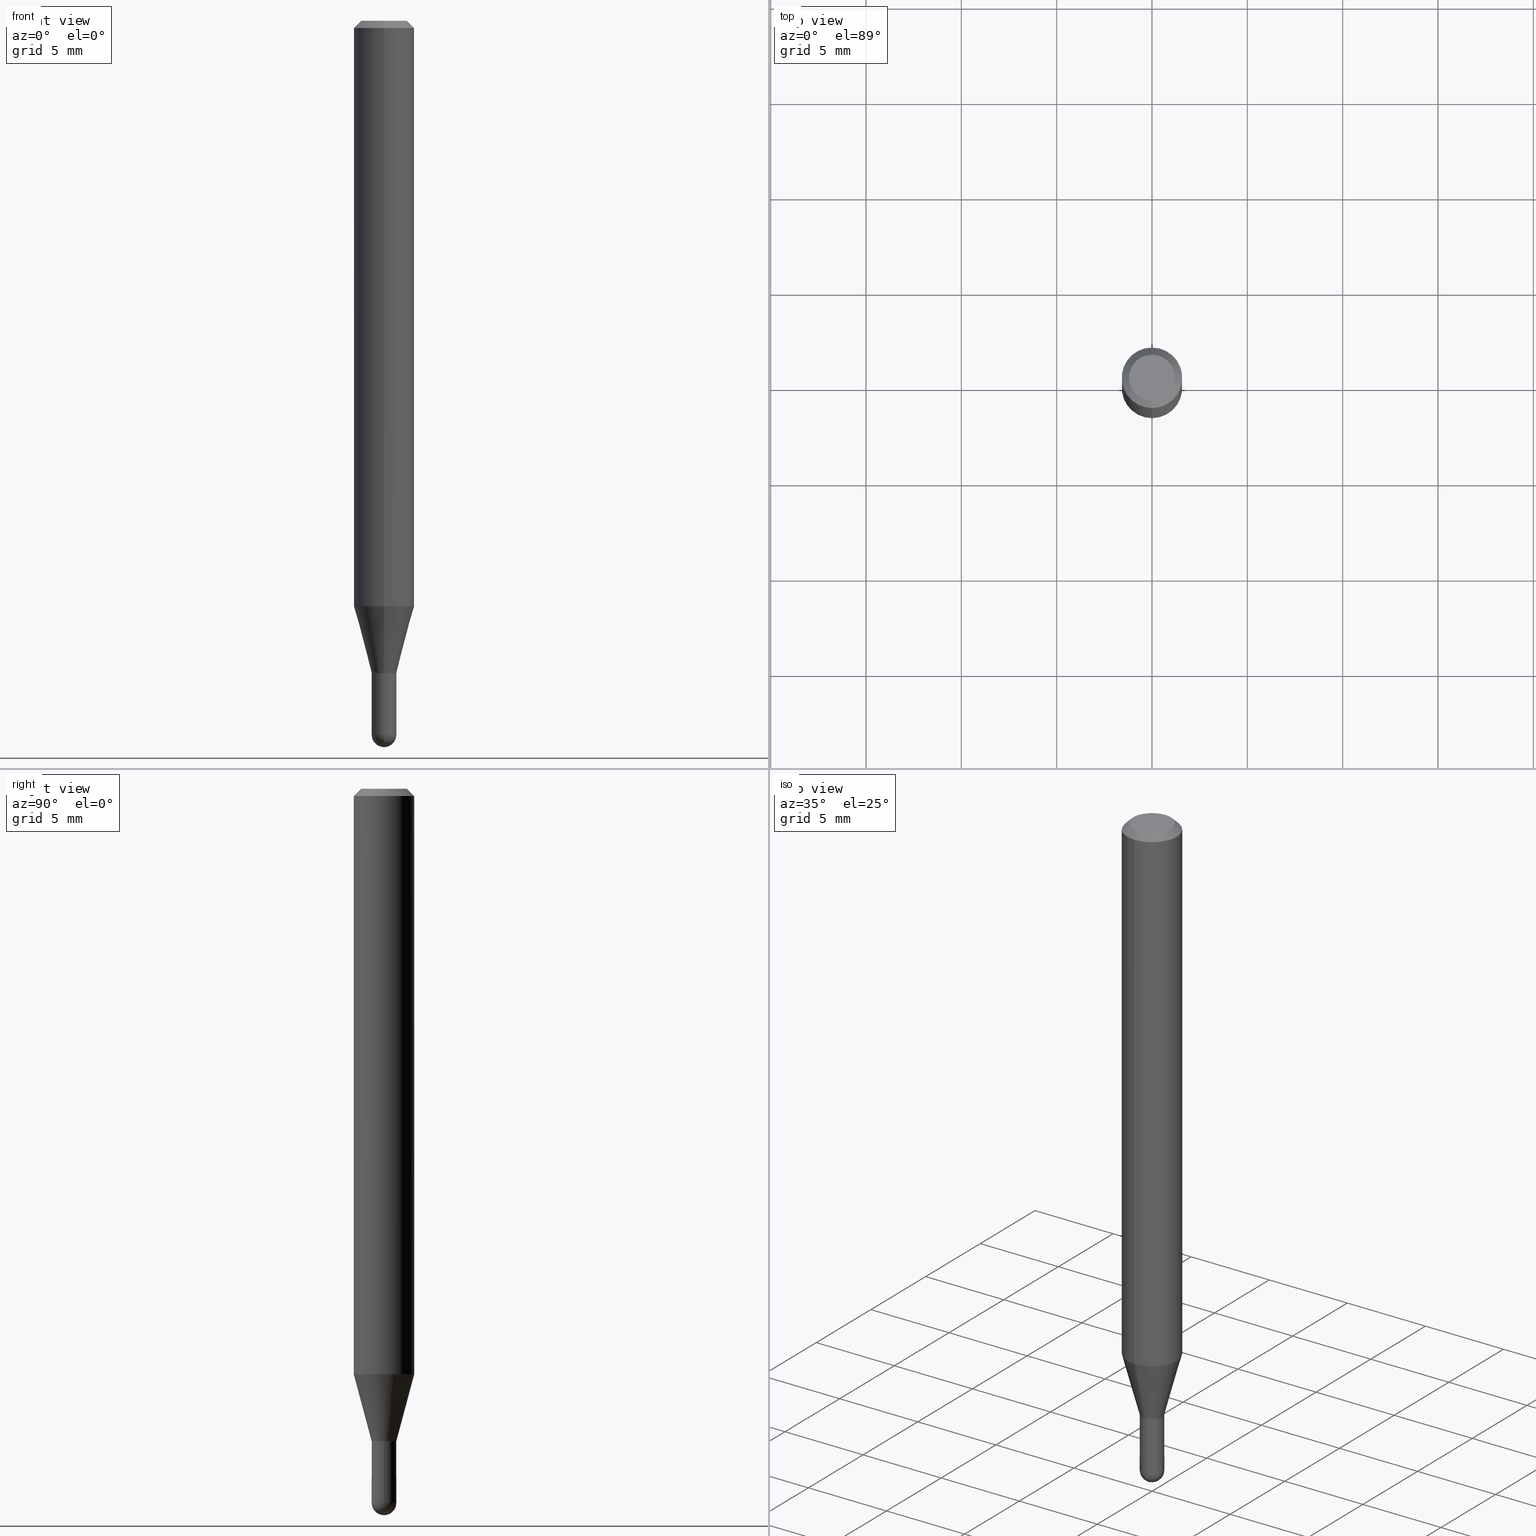
[diagram: canonical four-view strip — front | top / right | iso, engineering-drawing reading convention]
A machine part, canonical four-view strip (front | top / right | iso — engineering-drawing reading convention). The complete STEP part file that produces these views, byte-faithful:
ISO-10303-21;
HEADER;
FILE_DESCRIPTION (( 'STEP AP203' ),
    '1' );
FILE_NAME ('01474.STEP',
    '2024-03-07T21:23:58',
    ( '' ),
    ( '' ),
    'SwSTEP 2.0',
    'SolidWorks 2023',
    '' );
FILE_SCHEMA (( 'CONFIG_CONTROL_DESIGN' ));
ENDSEC;

DATA;
#1 = DATE_AND_TIME ( #261, #18 ) ;
#2 = VERTEX_POINT ( 'NONE', #319 ) ;
#3 = ADVANCED_FACE ( 'NONE', ( #125 ), #133, .T. ) ;
#4 = DIRECTION ( 'NONE',  ( -2.445468806185136597E-29, 3.491481338843145583E-15, 1.000000000000000000 ) ) ;
#5 = EDGE_LOOP ( 'NONE', ( #476, #304, #128, #95 ) ) ;
#6 = APPROVAL_PERSON_ORGANIZATION ( #145, #96, #71 ) ;
#7 = AXIS2_PLACEMENT_3D ( 'NONE', #78, #428, #352 ) ;
#8 = CARTESIAN_POINT ( 'NONE',  ( 3.294050965348255594E-29, -4.703018942913569245E-15, -1.347000000000000197 ) ) ;
#9 = CC_DESIGN_PERSON_AND_ORGANIZATION_ASSIGNMENT ( #180, #427, ( #329 ) ) ;
#10 = ORIENTED_EDGE ( 'NONE', *, *, #377, .F. ) ;
#11 = ORIENTED_EDGE ( 'NONE', *, *, #160, .T. ) ;
#12 = ADVANCED_FACE ( 'NONE', ( #496 ), #252, .T. ) ;
#13 = ORIENTED_EDGE ( 'NONE', *, *, #351, .T. ) ;
#14 = FACE_OUTER_BOUND ( 'NONE', #472, .T. ) ;
#15 = CIRCLE ( 'NONE', #424, 0.06250000000000000000 ) ;
#16 = ORIENTED_EDGE ( 'NONE', *, *, #93, .T. ) ;
#17 = FACE_OUTER_BOUND ( 'NONE', #411, .T. ) ;
#18 = LOCAL_TIME ( 16, 23, 58.00000000000000000, #300 ) ;
#19 = DIRECTION ( 'NONE',  ( 2.445472134631221658E-29, -3.491476572318908216E-15, -1.000000000000000000 ) ) ;
#20 = CARTESIAN_POINT ( 'NONE',  ( 2.166821834485461090E-46, -3.093638878300256237E-32, -8.860546001732374600E-18 ) ) ;
#21 = AXIS2_PLACEMENT_3D ( 'NONE', #97, #286, #407 ) ;
#22 = CARTESIAN_POINT ( 'NONE',  ( -1.780655482809662962E-16, -0.02550000000000462660, -1.347000000000000197 ) ) ;
#23 = CIRCLE ( 'NONE', #470, 0.06250000000000000000 ) ;
#24 = PLANE ( 'NONE',  #507 ) ;
#25 = CARTESIAN_POINT ( 'NONE',  ( 0.02549999999999999836, -4.881090911702717249E-15, -1.347000000000000197 ) ) ;
#26 = EDGE_CURVE ( 'NONE', #76, #419, #46, .T. ) ;
#27 = EDGE_CURVE ( 'NONE', #116, #38, #469, .T. ) ;
#28 = CIRCLE ( 'NONE', #144, 0.04749999999999999362 ) ;
#29 = DIRECTION ( 'NONE',  ( 6.982962677686265922E-15, 1.000000000000000000, -3.491476572318908216E-15 ) ) ;
#30 = AXIS2_PLACEMENT_3D ( 'NONE', #234, #4, #395 ) ;
#31 = CARTESIAN_POINT ( 'NONE',  ( -3.773273898774340269E-16, -0.04749999999999999362, 1.569845911834157768E-16 ) ) ;
#32 = CARTESIAN_POINT ( 'NONE',  ( 3.294050965348255594E-29, -4.703018942913569245E-15, -1.347000000000000197 ) ) ;
#33 = COORDINATED_UNIVERSAL_TIME_OFFSET ( 5, 0, .BEHIND. ) ;
#34 =( GEOMETRIC_REPRESENTATION_CONTEXT ( 3 ) GLOBAL_UNCERTAINTY_ASSIGNED_CONTEXT ( ( #340 ) ) GLOBAL_UNIT_ASSIGNED_CONTEXT ( ( #53, #166, #137 ) ) REPRESENTATION_CONTEXT ( 'NONE', 'WORKASPACE' ) );
#35 = ADVANCED_FACE ( 'NONE', ( #49 ), #459, .T. ) ;
#36 = DIRECTION ( 'NONE',  ( 1.000000000000000000, -6.982962677686275388E-15, 0.000000000000000000 ) ) ;
#37 = DATE_AND_TIME ( #436, #283 ) ;
#38 = VERTEX_POINT ( 'NONE', #368 ) ;
#39 = AXIS2_PLACEMENT_3D ( 'NONE', #106, #473, #354 ) ;
#40 = CALENDAR_DATE ( 2024, 7, 3 ) ;
#41 = ORIENTED_EDGE ( 'NONE', *, *, #50, .T. ) ;
#42 = DIRECTION ( 'NONE',  ( -2.445472134631221658E-29, 3.491476572318908216E-15, 1.000000000000000000 ) ) ;
#43 = EDGE_LOOP ( 'NONE', ( #191, #80, #435, #281, #324 ) ) ;
#44 = CARTESIAN_POINT ( 'NONE',  ( 3.294050965348255594E-29, -4.703018942913569245E-15, -1.347000000000000197 ) ) ;
#45 = ORIENTED_EDGE ( 'NONE', *, *, #93, .F. ) ;
#46 = CIRCLE ( 'NONE', #170, 0.02549999999999999836 ) ;
#47 = AXIS2_PLACEMENT_3D ( 'NONE', #201, #444, #363 ) ;
#48 = ORIENTED_EDGE ( 'NONE', *, *, #421, .T. ) ;
#49 = FACE_OUTER_BOUND ( 'NONE', #237, .T. ) ;
#50 = EDGE_CURVE ( 'NONE', #260, #2, #167, .T. ) ;
#51 = ORGANIZATION ( 'UNSPECIFIED', 'UNSPECIFIED', '' ) ;
#52 = ORIENTED_EDGE ( 'NONE', *, *, #351, .F. ) ;
#53 =( CONVERSION_BASED_UNIT ( 'INCH', #320 ) LENGTH_UNIT ( ) NAMED_UNIT ( #288 ) );
#54 = CARTESIAN_POINT ( 'NONE',  ( 3.294046481931379390E-29, -4.703025363421717574E-15, -1.347000000000000197 ) ) ;
#55 = AXIS2_PLACEMENT_3D ( 'NONE', #8, #42, #112 ) ;
#56 = ORIENTED_EDGE ( 'NONE', *, *, #347, .T. ) ;
#57 = VECTOR ( 'NONE', #242, 39.37007874015748143 ) ;
#58 = EDGE_CURVE ( 'NONE', #364, #122, #28, .T. ) ;
#59 = EDGE_LOOP ( 'NONE', ( #466, #159 ) ) ;
#60 = DIRECTION ( 'NONE',  ( -2.445472134631221658E-29, 3.491476572318908216E-15, 1.000000000000000000 ) ) ;
#61 = CIRCLE ( 'NONE', #126, 0.02549999999999992203 ) ;
#62 = CIRCLE ( 'NONE', #461, 0.02549999999999999836 ) ;
#63 = CARTESIAN_POINT ( 'NONE',  ( 3.292828229280940379E-29, -4.701273204627410921E-15, -1.346500000000000252 ) ) ;
#64 = EDGE_CURVE ( 'NONE', #260, #307, #443, .T. ) ;
#65 = LINE ( 'NONE', #423, #171 ) ;
#66 = DATE_AND_TIME ( #189, #399 ) ;
#67 = FACE_OUTER_BOUND ( 'NONE', #318, .T. ) ;
#68 = AXIS2_PLACEMENT_3D ( 'NONE', #175, #108, #103 ) ;
#69 = AXIS2_PLACEMENT_3D ( 'NONE', #362, #282, #200 ) ;
#70 = PERSON_AND_ORGANIZATION_ROLE ( 'creator' ) ;
#71 = APPROVAL_ROLE ( '' ) ;
#72 = EDGE_LOOP ( 'NONE', ( #216, #232 ) ) ;
#73 = DIRECTION ( 'NONE',  ( -2.445468806185136597E-29, 3.491481338843145583E-15, 1.000000000000000000 ) ) ;
#74 = DATE_TIME_ROLE ( 'classification_date' ) ;
#75 = DIRECTION ( 'NONE',  ( -2.445472134631221658E-29, 3.491476572318908216E-15, 1.000000000000000000 ) ) ;
#76 = VERTEX_POINT ( 'NONE', #465 ) ;
#77 = CIRCLE ( 'NONE', #366, 0.02499999999999999792 ) ;
#78 = CARTESIAN_POINT ( 'NONE',  ( 0.000000000000000000, 0.000000000000000000, 0.000000000000000000 ) ) ;
#79 = CC_DESIGN_SECURITY_CLASSIFICATION ( #110, ( #310 ) ) ;
#80 = ORIENTED_EDGE ( 'NONE', *, *, #224, .T. ) ;
#81 = ORIENTED_EDGE ( 'NONE', *, *, #415, .F. ) ;
#82 = ORIENTED_EDGE ( 'NONE', *, *, #394, .T. ) ;
#83 = DIRECTION ( 'NONE',  ( -6.982962677686265133E-15, -1.000000000000000000, 0.000000000000000000 ) ) ;
#84 = CONICAL_SURFACE ( 'NONE', #330, 0.02499999999999999792, 0.7853981633974739252 ) ;
#85 = ADVANCED_FACE ( 'NONE', ( #67 ), #24, .F. ) ;
#86 = ORIENTED_EDGE ( 'NONE', *, *, #150, .T. ) ;
#87 = FACE_OUTER_BOUND ( 'NONE', #43, .T. ) ;
#88 = CC_DESIGN_PERSON_AND_ORGANIZATION_ASSIGNMENT ( #380, #475, ( #310 ) ) ;
#89 = DIRECTION ( 'NONE',  ( -6.982962677686265922E-15, -1.000000000000000000, 4.370956789862821150E-15 ) ) ;
#90 = APPLICATION_PROTOCOL_DEFINITION ( 'international standard', 'config_control_design', 1994, #239 ) ;
#91 = FACE_OUTER_BOUND ( 'NONE', #279, .T. ) ;
#92 = ORIENTED_EDGE ( 'NONE', *, *, #451, .F. ) ;
#93 = EDGE_CURVE ( 'NONE', #122, #225, #213, .T. ) ;
#94 = CIRCLE ( 'NONE', #196, 0.02549999999999992203 ) ;
#95 = ORIENTED_EDGE ( 'NONE', *, *, #347, .F. ) ;
#96 = APPROVAL ( #148, 'UNSPECIFIED' ) ;
#97 = CARTESIAN_POINT ( 'NONE',  ( 3.294050965348255594E-29, -4.703018942913569245E-15, -1.347000000000000197 ) ) ;
#98 = CARTESIAN_POINT ( 'NONE',  ( 0.000000000000000000, 0.000000000000000000, 0.000000000000000000 ) ) ;
#99 = EDGE_CURVE ( 'NONE', #38, #328, #376, .T. ) ;
#100 = CARTESIAN_POINT ( 'NONE',  ( -4.287811248607203282E-16, -0.06250000000000005551, -0.01499999999999979128 ) ) ;
#101 = DIRECTION ( 'NONE',  ( -4.937700262164674260E-15, -0.7071067811865632269, 0.7071067811865319186 ) ) ;
#102 = CC_DESIGN_PERSON_AND_ORGANIZATION_ASSIGNMENT ( #185, #506, ( #110 ) ) ;
#103 = DIRECTION ( 'NONE',  ( 1.000000000000000000, -6.982962677686275388E-15, 0.000000000000000000 ) ) ;
#104 = DATE_AND_TIME ( #297, #375 ) ;
#105 = LINE ( 'NONE', #182, #406 ) ;
#106 = CARTESIAN_POINT ( 'NONE',  ( 2.956365793915573525E-29, -4.220895328344351815E-15, -1.208914120119955804 ) ) ;
#107 = DATE_AND_TIME ( #40, #154 ) ;
#108 = DIRECTION ( 'NONE',  ( -2.445468806185136597E-29, 3.491481338843145583E-15, 1.000000000000000000 ) ) ;
#109 = AXIS2_PLACEMENT_3D ( 'NONE', #495, #246, #132 ) ;
#110 = SECURITY_CLASSIFICATION ( '', '', #220 ) ;
#111 = COORDINATED_UNIVERSAL_TIME_OFFSET ( 5, 0, .BEHIND. ) ;
#112 = DIRECTION ( 'NONE',  ( -6.982962677686265922E-15, -1.000000000000000000, 0.000000000000000000 ) ) ;
#113 = ORIENTED_EDGE ( 'NONE', *, *, #26, .F. ) ;
#114 = COORDINATED_UNIVERSAL_TIME_OFFSET ( 5, 0, .BEHIND. ) ;
#115 = FACE_OUTER_BOUND ( 'NONE', #152, .T. ) ;
#116 = VERTEX_POINT ( 'NONE', #504 ) ;
#117 = DIRECTION ( 'NONE',  ( -2.445472134631221378E-29, 3.491476572318908216E-15, 1.000000000000000000 ) ) ;
#118 = EDGE_CURVE ( 'NONE', #263, #260, #105, .T. ) ;
#119 = EDGE_LOOP ( 'NONE', ( #358, #341, #193, #273 ) ) ;
#120 = DIRECTION ( 'NONE',  ( -2.445468806185136877E-29, 3.491481338843145188E-15, 1.000000000000000000 ) ) ;
#121 = PERSON_AND_ORGANIZATION_ROLE ( 'design_owner' ) ;
#122 = VERTEX_POINT ( 'NONE', #31 ) ;
#123 = CARTESIAN_POINT ( 'NONE',  ( 3.668208201946835097E-31, -5.237214858478365529E-17, -0.01500000000000000812 ) ) ;
#124 = ORIENTED_EDGE ( 'NONE', *, *, #130, .T. ) ;
#125 = FACE_OUTER_BOUND ( 'NONE', #267, .T. ) ;
#126 = AXIS2_PLACEMENT_3D ( 'NONE', #63, #215, #339 ) ;
#127 = CC_DESIGN_PERSON_AND_ORGANIZATION_ASSIGNMENT ( #387, #70, ( #310 ) ) ;
#128 = ORIENTED_EDGE ( 'NONE', *, *, #130, .F. ) ;
#129 = CARTESIAN_POINT ( 'NONE',  ( -1.780655482809642994E-16, -0.02550000000000523376, -1.474500000000000144 ) ) ;
#130 = EDGE_CURVE ( 'NONE', #211, #328, #61, .T. ) ;
#131 = CARTESIAN_POINT ( 'NONE',  ( 3.603663080682576322E-29, -5.151312083462043978E-15, -1.474500000000000144 ) ) ;
#132 = DIRECTION ( 'NONE',  ( -6.982962677686265133E-15, -1.000000000000000000, 0.000000000000000000 ) ) ;
#133 = CYLINDRICAL_SURFACE ( 'NONE', #226, 0.02549999999999999836 ) ;
#134 = EDGE_CURVE ( 'NONE', #437, #211, #301, .T. ) ;
#135 = AXIS2_PLACEMENT_3D ( 'NONE', #123, #272, #186 ) ;
#136 = VERTEX_POINT ( 'NONE', #425 ) ;
#137 =( NAMED_UNIT ( * ) SI_UNIT ( $, .STERADIAN. ) SOLID_ANGLE_UNIT ( ) );
#138 = EDGE_CURVE ( 'NONE', #437, #307, #373, .T. ) ;
#139 = CARTESIAN_POINT ( 'NONE',  ( -1.745740669421236835E-16, -0.02500000000000470249, -1.347000000000000197 ) ) ;
#140 = CIRCLE ( 'NONE', #433, 0.02550000000000016143 ) ;
#141 = DIRECTION ( 'NONE',  ( 4.937700262164548042E-15, 0.7071067811865451302, -0.7071067811865499042 ) ) ;
#142 = ADVANCED_FACE ( 'NONE', ( #115 ), #151, .F. ) ;
#143 = DIRECTION ( 'NONE',  ( -2.445472134631221658E-29, 3.491476572318908216E-15, 1.000000000000000000 ) ) ;
#144 = AXIS2_PLACEMENT_3D ( 'NONE', #493, #449, #289 ) ;
#145 = PERSON_AND_ORGANIZATION ( #295, #51 ) ;
#146 = ORIENTED_EDGE ( 'NONE', *, *, #415, .T. ) ;
#147 = CONICAL_SURFACE ( 'NONE', #135, 0.06250000000000000000, 0.7853981633974483900 ) ;
#148 = APPROVAL_STATUS ( 'not_yet_approved' ) ;
#149 = ORIENTED_EDGE ( 'NONE', *, *, #323, .T. ) ;
#150 = EDGE_CURVE ( 'NONE', #276, #136, #176, .T. ) ;
#151 = CYLINDRICAL_SURFACE ( 'NONE', #480, 0.02549999999999992203 ) ;
#152 = EDGE_LOOP ( 'NONE', ( #10, #199, #371, #124 ) ) ;
#153 = MANIFOLD_SOLID_BREP ( 'Body-Move/Copy2[1]', #372 ) ;
#154 = LOCAL_TIME ( 16, 23, 58.00000000000000000, #391 ) ;
#155 = ORIENTED_EDGE ( 'NONE', *, *, #334, .F. ) ;
#156 = CARTESIAN_POINT ( 'NONE',  ( -0.02549999999999999836, -4.744418901154142248E-15, -1.474500000000000144 ) ) ;
#157 = AXIS2_PLACEMENT_3D ( 'NONE', #20, #365, #414 ) ;
#158 = LINE ( 'NONE', #349, #206 ) ;
#159 = ORIENTED_EDGE ( 'NONE', *, *, #438, .F. ) ;
#160 = EDGE_CURVE ( 'NONE', #419, #276, #401, .T. ) ;
#161 = DIRECTION ( 'NONE',  ( -2.445468806185136597E-29, 3.491481338843145583E-15, 1.000000000000000000 ) ) ;
#162 = DIRECTION ( 'NONE',  ( -2.445468806185136597E-29, 3.491481338843145583E-15, 1.000000000000000000 ) ) ;
#163 = EDGE_LOOP ( 'NONE', ( #165, #350, #398, #453 ) ) ;
#164 = AXIS2_PLACEMENT_3D ( 'NONE', #131, #456, #450 ) ;
#165 = ORIENTED_EDGE ( 'NONE', *, *, #50, .F. ) ;
#166 =( NAMED_UNIT ( * ) PLANE_ANGLE_UNIT ( ) SI_UNIT ( $, .RADIAN. ) );
#167 = LINE ( 'NONE', #499, #204 ) ;
#168 = CARTESIAN_POINT ( 'NONE',  ( 0.000000000000000000, 0.000000000000000000, 0.000000000000000000 ) ) ;
#169 = ORIENTED_EDGE ( 'NONE', *, *, #421, .F. ) ;
#170 = AXIS2_PLACEMENT_3D ( 'NONE', #247, #162, #208 ) ;
#171 = VECTOR ( 'NONE', #217, 39.37007874015748143 ) ;
#172 = DIRECTION ( 'NONE',  ( -1.807323732225377865E-15, -0.2588190451025250138, 0.9659258262890670910 ) ) ;
#173 = ADVANCED_FACE ( 'NONE', ( #221 ), #311, .T. ) ;
#174 = APPLICATION_PROTOCOL_DEFINITION ( 'international standard', 'config_control_design', 1994, #266 ) ;
#175 = CARTESIAN_POINT ( 'NONE',  ( 3.294046481931379390E-29, -4.703025363421717574E-15, -1.347000000000000197 ) ) ;
#176 = CIRCLE ( 'NONE', #30, 0.02549999999999999836 ) ;
#177 = DIRECTION ( 'NONE',  ( -1.000000000000000000, 6.982962677686265922E-15, -4.876176775795935793E-29 ) ) ;
#178 = CONICAL_SURFACE ( 'NONE', #240, 0.02549999999999992203, 0.2617993877991573459 ) ;
#179 = CARTESIAN_POINT ( 'NONE',  ( 3.668208201946835097E-31, -5.237214858478365529E-17, -0.01500000000000000812 ) ) ;
#180 = PERSON_AND_ORGANIZATION ( #295, #51 ) ;
#181 = PRODUCT_RELATED_PRODUCT_CATEGORY ( 'detail', '', ( #230 ) ) ;
#182 = CARTESIAN_POINT ( 'NONE',  ( 1.811883976188579037E-16, 0.02549999999999521746, -1.347000000000000197 ) ) ;
#183 = CARTESIAN_POINT ( 'NONE',  ( 3.605843754719984351E-29, -5.148189234124218339E-15, -1.474500000000000144 ) ) ;
#184 = DIRECTION ( 'NONE',  ( -6.982962677686265922E-15, -1.000000000000000000, 3.483106191921935554E-15 ) ) ;
#185 = PERSON_AND_ORGANIZATION ( #295, #51 ) ;
#186 = DIRECTION ( 'NONE',  ( 6.982962677686265922E-15, 1.000000000000000000, -3.483106191921935554E-15 ) ) ;
#187 = ORIENTED_EDGE ( 'NONE', *, *, #160, .F. ) ;
#188 = CIRCLE ( 'NONE', #39, 0.06250000000000000000 ) ;
#189 = CALENDAR_DATE ( 2024, 7, 3 ) ;
#190 = CARTESIAN_POINT ( 'NONE',  ( -1.780655482809669125E-16, -0.02550000000000471334, -1.346500000000000252 ) ) ;
#191 = ORIENTED_EDGE ( 'NONE', *, *, #26, .T. ) ;
#192 = DIRECTION ( 'NONE',  ( -6.982962677686265922E-15, -1.000000000000000000, 0.000000000000000000 ) ) ;
#193 = ORIENTED_EDGE ( 'NONE', *, *, #138, .T. ) ;
#194 = DIRECTION ( 'NONE',  ( -6.982962677686265133E-15, -1.000000000000000000, 0.000000000000000000 ) ) ;
#195 = ORIENTED_EDGE ( 'NONE', *, *, #287, .T. ) ;
#196 = AXIS2_PLACEMENT_3D ( 'NONE', #342, #379, #426 ) ;
#197 = CARTESIAN_POINT ( 'NONE',  ( 3.126388037344751250E-16, 0.02549999999999521746, -1.347000000000000197 ) ) ;
#198 = ADVANCED_FACE ( 'NONE', ( #478 ), #385, .F. ) ;
#199 = ORIENTED_EDGE ( 'NONE', *, *, #359, .F. ) ;
#200 = DIRECTION ( 'NONE',  ( -6.982962677686265922E-15, -1.000000000000000000, 0.000000000000000000 ) ) ;
#201 = CARTESIAN_POINT ( 'NONE',  ( 0.000000000000000000, 0.000000000000000000, 0.000000000000000000 ) ) ;
#202 = DIRECTION ( 'NONE',  ( -2.445472134631221658E-29, 3.491476572318908216E-15, 1.000000000000000000 ) ) ;
#203 = DIRECTION ( 'NONE',  ( 1.000000000000000000, -6.982962677686266711E-15, 4.876176775795935793E-29 ) ) ;
#204 = VECTOR ( 'NONE', #202, 39.37007874015748143 ) ;
#205 = CARTESIAN_POINT ( 'NONE',  ( 3.664932198221593692E-29, -5.241906282271458607E-15, -1.500000000000000222 ) ) ;
#206 = VECTOR ( 'NONE', #120, 39.37007874015748143 ) ;
#207 = CARTESIAN_POINT ( 'NONE',  ( 3.668208201946835097E-31, -5.237214858478365529E-17, -0.01500000000000000812 ) ) ;
#208 = DIRECTION ( 'NONE',  ( 1.000000000000000000, -6.982962677686275388E-15, 0.000000000000000000 ) ) ;
#209 = DIRECTION ( 'NONE',  ( -2.445468806185136597E-29, 3.491481338843145583E-15, 1.000000000000000000 ) ) ;
#210 = ADVANCED_FACE ( 'NONE', ( #227 ), #84, .T. ) ;
#211 = VERTEX_POINT ( 'NONE', #190 ) ;
#212 = AXIS2_PLACEMENT_3D ( 'NONE', #207, #19, #413 ) ;
#213 = LINE ( 'NONE', #100, #275 ) ;
#214 = ADVANCED_FACE ( 'NONE', ( #484 ), #374, .T. ) ;
#215 = DIRECTION ( 'NONE',  ( -2.445472134631221658E-29, 3.491476572318908216E-15, 1.000000000000000000 ) ) ;
#216 = ORIENTED_EDGE ( 'NONE', *, *, #58, .T. ) ;
#217 = DIRECTION ( 'NONE',  ( -2.445472134631221658E-29, 3.491476572318908216E-15, 1.000000000000000000 ) ) ;
#218 = CIRCLE ( 'NONE', #229, 0.02549999999999999836 ) ;
#219 = CARTESIAN_POINT ( 'NONE',  ( 3.316907271900976096E-16, 0.04749999999999999362, -1.702754101860143294E-16 ) ) ;
#220 = SECURITY_CLASSIFICATION_LEVEL ( 'unclassified' ) ;
#221 = FACE_OUTER_BOUND ( 'NONE', #163, .T. ) ;
#222 = PLANE ( 'NONE',  #500 ) ;
#223 = APPROVAL_DATE_TIME ( #37, #477 ) ;
#224 = EDGE_CURVE ( 'NONE', #419, #440, #158, .T. ) ;
#225 = VERTEX_POINT ( 'NONE', #316 ) ;
#226 = AXIS2_PLACEMENT_3D ( 'NONE', #321, #241, #402 ) ;
#227 = FACE_OUTER_BOUND ( 'NONE', #5, .T. ) ;
#228 = EDGE_LOOP ( 'NONE', ( #393, #16, #243, #52 ) ) ;
#229 = AXIS2_PLACEMENT_3D ( 'NONE', #183, #73, #36 ) ;
#230 = PRODUCT ( '01474', '01474', '', ( #245 ) ) ;
#231 = FACE_OUTER_BOUND ( 'NONE', #228, .T. ) ;
#232 = ORIENTED_EDGE ( 'NONE', *, *, #462, .T. ) ;
#233 = ADVANCED_FACE ( 'NONE', ( #265 ), #259, .T. ) ;
#234 = CARTESIAN_POINT ( 'NONE',  ( 3.605843754719984351E-29, -5.148189234124218339E-15, -1.474500000000000144 ) ) ;
#235 = ORIENTED_EDGE ( 'NONE', *, *, #312, .F. ) ;
#236 = CARTESIAN_POINT ( 'NONE',  ( 4.440892098500919026E-16, 0.06249999999999576727, -1.208914120119956026 ) ) ;
#237 = EDGE_LOOP ( 'NONE', ( #45, #353, #13, #82 ) ) ;
#238 = CARTESIAN_POINT ( 'NONE',  ( -0.02549999999999999836, -4.744418901154142248E-15, -1.347000000000000197 ) ) ;
#239 = APPLICATION_CONTEXT ( 'configuration controlled 3d designs of mechanical parts and assemblies' ) ;
#240 = AXIS2_PLACEMENT_3D ( 'NONE', #305, #143, #467 ) ;
#241 = DIRECTION ( 'NONE',  ( -2.445468806185136597E-29, 3.491481338843145583E-15, 1.000000000000000000 ) ) ;
#242 = DIRECTION ( 'NONE',  ( -2.445468806185136877E-29, 3.491481338843145188E-15, 1.000000000000000000 ) ) ;
#243 = ORIENTED_EDGE ( 'NONE', *, *, #334, .T. ) ;
#244 = ADVANCED_FACE ( 'NONE', ( #231 ), #147, .T. ) ;
#245 = MECHANICAL_CONTEXT ( 'NONE', #239, 'mechanical' ) ;
#246 = DIRECTION ( 'NONE',  ( -2.445472134631221658E-29, 3.491476572318908216E-15, 1.000000000000000000 ) ) ;
#247 = CARTESIAN_POINT ( 'NONE',  ( 3.605843754719984351E-29, -5.148189234124218339E-15, -1.474500000000000144 ) ) ;
#248 = CC_DESIGN_DATE_AND_TIME_ASSIGNMENT ( #107, #422, ( #329 ) ) ;
#249 = DIRECTION ( 'NONE',  ( -2.445472134631221658E-29, 3.491476572318908216E-15, 1.000000000000000000 ) ) ;
#250 = VECTOR ( 'NONE', #141, 39.37007874015748143 ) ;
#251 = ORIENTED_EDGE ( 'NONE', *, *, #118, .T. ) ;
#252 = SPHERICAL_SURFACE ( 'NONE', #164, 0.02550000000000016143 ) ;
#253 = DIRECTION ( 'NONE',  ( 5.024295867788190974E-15, 0.7071067811865681119, 0.7071067811865270336 ) ) ;
#254 = DIRECTION ( 'NONE',  ( -2.445472134631221658E-29, 3.491476572318908216E-15, 1.000000000000000000 ) ) ;
#255 = DIRECTION ( 'NONE',  ( -4.851104656540964275E-15, -0.7071067811865500152, -0.7071067811865450192 ) ) ;
#256 = APPROVAL ( #348, 'UNSPECIFIED' ) ;
#257 = LINE ( 'NONE', #384, #250 ) ;
#258 = ADVANCED_FACE ( 'NONE', ( #91 ), #327, .F. ) ;
#259 = CYLINDRICAL_SURFACE ( 'NONE', #7, 0.06250000000000000000 ) ;
#260 = VERTEX_POINT ( 'NONE', #236 ) ;
#261 = CALENDAR_DATE ( 2024, 7, 3 ) ;
#262 = CARTESIAN_POINT ( 'NONE',  ( 0.000000000000000000, 0.000000000000000000, 0.000000000000000000 ) ) ;
#263 = VERTEX_POINT ( 'NONE', #197 ) ;
#264 = AXIS2_PLACEMENT_3D ( 'NONE', #361, #60, #89 ) ;
#265 = FACE_OUTER_BOUND ( 'NONE', #512, .T. ) ;
#266 = APPLICATION_CONTEXT ( 'configuration controlled 3d designs of mechanical parts and assemblies' ) ;
#267 = EDGE_LOOP ( 'NONE', ( #346, #11, #86, #485, #270 ) ) ;
#268 = VECTOR ( 'NONE', #249, 39.37007874015748143 ) ;
#269 = APPROVAL_STATUS ( 'not_yet_approved' ) ;
#270 = ORIENTED_EDGE ( 'NONE', *, *, #323, .F. ) ;
#271 = CARTESIAN_POINT ( 'NONE',  ( -1.780655482809662962E-16, -0.02550000000000462660, -1.347000000000000197 ) ) ;
#272 = DIRECTION ( 'NONE',  ( 2.445472134631221658E-29, -3.491476572318908216E-15, -1.000000000000000000 ) ) ;
#273 = ORIENTED_EDGE ( 'NONE', *, *, #64, .F. ) ;
#274 = CARTESIAN_POINT ( 'NONE',  ( 3.294050965348255594E-29, -4.703018942913569245E-15, -1.347000000000000197 ) ) ;
#275 = VECTOR ( 'NONE', #255, 39.37007874015748143 ) ;
#276 = VERTEX_POINT ( 'NONE', #129 ) ;
#277 = CARTESIAN_POINT ( 'NONE',  ( 3.603663080682576322E-29, -5.151312083462043978E-15, -1.474500000000000144 ) ) ;
#278 = CIRCLE ( 'NONE', #417, 0.02549999999999992203 ) ;
#279 = EDGE_LOOP ( 'NONE', ( #317, #445, #396, #432 ) ) ;
#280 = SPHERICAL_SURFACE ( 'NONE', #455, 0.02550000000000016143 ) ;
#281 = ORIENTED_EDGE ( 'NONE', *, *, #494, .F. ) ;
#282 = DIRECTION ( 'NONE',  ( -2.445472134631221658E-29, 3.491476572318908216E-15, 1.000000000000000000 ) ) ;
#283 = LOCAL_TIME ( 16, 23, 58.00000000000000000, #33 ) ;
#284 = CARTESIAN_POINT ( 'NONE',  ( -4.364351673553622350E-16, -0.06250000000000424660, -1.208914120119955582 ) ) ;
#285 = CLOSED_SHELL ( 'NONE', ( #258, #210, #244, #233, #409, #214, #173, #35, #390, #198, #293, #142 ) ) ;
#286 = DIRECTION ( 'NONE',  ( -2.445472134631221658E-29, 3.491476572318908216E-15, 1.000000000000000000 ) ) ;
#287 = EDGE_CURVE ( 'NONE', #313, #440, #62, .T. ) ;
#288 = DIMENSIONAL_EXPONENTS ( 1.000000000000000000, 0.000000000000000000, 0.000000000000000000, 0.000000000000000000, 0.000000000000000000, 0.000000000000000000, 0.000000000000000000 ) ;
#289 = DIRECTION ( 'NONE',  ( -6.982962677686266711E-15, -1.000000000000000000, 3.491476572318908611E-15 ) ) ;
#290 = LINE ( 'NONE', #452, #57 ) ;
#291 = CC_DESIGN_PERSON_AND_ORGANIZATION_ASSIGNMENT ( #332, #121, ( #230 ) ) ;
#292 = APPROVAL_PERSON_ORGANIZATION ( #336, #477, #457 ) ;
#293 = ADVANCED_FACE ( 'NONE', ( #14 ), #509, .T. ) ;
#294 = VECTOR ( 'NONE', #172, 39.37007874015748854 ) ;
#295 = PERSON ( 'UNSPECIFIED', 'UNSPECIFIED', 'UNSPECIFIED', ('UNSPECIFIED'), ('UNSPECIFIED'), ('UNSPECIFIED') ) ;
#296 = AXIS2_PLACEMENT_3D ( 'NONE', #489, #314, #486 ) ;
#297 = CALENDAR_DATE ( 2024, 7, 3 ) ;
#298 = CC_DESIGN_APPROVAL ( #256, ( #110 ) ) ;
#299 = DIRECTION ( 'NONE',  ( -6.982962677686265922E-15, -1.000000000000000000, 0.000000000000000000 ) ) ;
#300 = COORDINATED_UNIVERSAL_TIME_OFFSET ( 5, 0, .BEHIND. ) ;
#301 = LINE ( 'NONE', #468, #491 ) ;
#302 = PERSON_AND_ORGANIZATION ( #295, #51 ) ;
#303 = AXIS2_PLACEMENT_3D ( 'NONE', #44, #117, #431 ) ;
#304 = ORIENTED_EDGE ( 'NONE', *, *, #99, .T. ) ;
#305 = CARTESIAN_POINT ( 'NONE',  ( 3.294050965348255594E-29, -4.703018942913569245E-15, -1.347000000000000197 ) ) ;
#306 = APPROVAL_DATE_TIME ( #66, #96 ) ;
#307 = VERTEX_POINT ( 'NONE', #284 ) ;
#308 = CARTESIAN_POINT ( 'NONE',  ( 3.605843754719984351E-29, -5.148189234124218339E-15, -1.474500000000000144 ) ) ;
#309 = ORIENTED_EDGE ( 'NONE', *, *, #483, .F. ) ;
#310 = PRODUCT_DEFINITION_FORMATION_WITH_SPECIFIED_SOURCE ( 'ANY', '', #230, .NOT_KNOWN. ) ;
#311 = CYLINDRICAL_SURFACE ( 'NONE', #315, 0.06250000000000000000 ) ;
#312 = EDGE_CURVE ( 'NONE', #136, #76, #218, .T. ) ;
#313 = VERTEX_POINT ( 'NONE', #25 ) ;
#314 = DIRECTION ( 'NONE',  ( 1.000000000000000000, -7.105427357601001070E-15, 4.926315508542082329E-29 ) ) ;
#315 = AXIS2_PLACEMENT_3D ( 'NONE', #439, #510, #471 ) ;
#316 = CARTESIAN_POINT ( 'NONE',  ( -4.364351673553912750E-16, -0.06250000000000005551, -0.01499999999999979128 ) ) ;
#317 = ORIENTED_EDGE ( 'NONE', *, *, #367, .F. ) ;
#318 = EDGE_LOOP ( 'NONE', ( #195, #149 ) ) ;
#319 = CARTESIAN_POINT ( 'NONE',  ( 4.440892098500922971E-16, 0.06249999999999995143, -0.01500000000000022669 ) ) ;
#320 = LENGTH_MEASURE_WITH_UNIT ( LENGTH_MEASURE( 0.02539999999999999897 ), #403 );
#321 = CARTESIAN_POINT ( 'NONE',  ( 0.000000000000000000, 0.000000000000000000, 0.000000000000000000 ) ) ;
#322 = MANIFOLD_SOLID_BREP ( 'Body-Move/Copy2[2]', #285 ) ;
#323 = EDGE_CURVE ( 'NONE', #440, #313, #357, .T. ) ;
#324 = ORIENTED_EDGE ( 'NONE', *, *, #312, .T. ) ;
#325 = DIRECTION ( 'NONE',  ( 1.000000000000000000, 0.000000000000000000, 0.000000000000000000 ) ) ;
#326 = ADVANCED_BREP_SHAPE_REPRESENTATION ( '01474', ( #153, #322, #370 ), #34 ) ;
#327 = CYLINDRICAL_SURFACE ( 'NONE', #47, 0.02549999999999992203 ) ;
#328 = VERTEX_POINT ( 'NONE', #460 ) ;
#329 = PRODUCT_DEFINITION ( 'UNKNOWN', '', #310, #497 ) ;
#330 = AXIS2_PLACEMENT_3D ( 'NONE', #481, #75, #194 ) ;
#331 = CC_DESIGN_APPROVAL ( #96, ( #310 ) ) ;
#332 = PERSON_AND_ORGANIZATION ( #295, #51 ) ;
#333 = CARTESIAN_POINT ( 'NONE',  ( 3.668208201946835097E-31, -5.237214858478365529E-17, -0.01500000000000000812 ) ) ;
#334 = EDGE_CURVE ( 'NONE', #225, #2, #15, .T. ) ;
#335 = DIRECTION ( 'NONE',  ( -2.445472134631221658E-29, 3.491476572318908216E-15, 1.000000000000000000 ) ) ;
#336 = PERSON_AND_ORGANIZATION ( #295, #51 ) ;
#337 = VECTOR ( 'NONE', #101, 39.37007874015748143 ) ;
#338 = FACE_OUTER_BOUND ( 'NONE', #429, .T. ) ;
#339 = DIRECTION ( 'NONE',  ( -6.982962677686265922E-15, -1.000000000000000000, 0.000000000000000000 ) ) ;
#340 = UNCERTAINTY_MEASURE_WITH_UNIT (LENGTH_MEASURE( 1.000000000000000082E-05 ), #53, 'distance_accuracy_value', 'NONE');
#341 = ORIENTED_EDGE ( 'NONE', *, *, #367, .T. ) ;
#342 = CARTESIAN_POINT ( 'NONE',  ( 3.294050965348255594E-29, -4.703018942913569245E-15, -1.347000000000000197 ) ) ;
#343 = LINE ( 'NONE', #360, #268 ) ;
#344 = APPROVAL_ROLE ( '' ) ;
#345 = PRODUCT_DEFINITION_SHAPE ( 'NONE', 'NONE',  #329 ) ;
#346 = ORIENTED_EDGE ( 'NONE', *, *, #224, .F. ) ;
#347 = EDGE_CURVE ( 'NONE', #116, #211, #420, .T. ) ;
#348 = APPROVAL_STATUS ( 'not_yet_approved' ) ;
#349 = CARTESIAN_POINT ( 'NONE',  ( -0.02549999999999999836, 1.811883976188255358E-16, -1.254328448015001021E-30 ) ) ;
#350 = ORIENTED_EDGE ( 'NONE', *, *, #64, .T. ) ;
#351 = EDGE_CURVE ( 'NONE', #364, #2, #257, .T. ) ;
#352 = DIRECTION ( 'NONE',  ( -6.982962677686265922E-15, -1.000000000000000000, 3.491476572318908216E-15 ) ) ;
#353 = ORIENTED_EDGE ( 'NONE', *, *, #58, .F. ) ;
#354 = DIRECTION ( 'NONE',  ( -6.982962677686265922E-15, -1.000000000000000000, 4.370956789862821150E-15 ) ) ;
#355 = DIRECTION ( 'NONE',  ( -6.982962677686265922E-15, -1.000000000000000000, 3.491476572318908216E-15 ) ) ;
#356 = ORIENTED_EDGE ( 'NONE', *, *, #448, .F. ) ;
#357 = CIRCLE ( 'NONE', #68, 0.02549999999999999836 ) ;
#358 = ORIENTED_EDGE ( 'NONE', *, *, #118, .F. ) ;
#359 = EDGE_CURVE ( 'NONE', #437, #263, #278, .T. ) ;
#360 = CARTESIAN_POINT ( 'NONE',  ( -4.364351673553916201E-16, -0.06250000000000000000, 2.182172857699317635E-16 ) ) ;
#361 = CARTESIAN_POINT ( 'NONE',  ( 2.956365793915573525E-29, -4.220895328344351815E-15, -1.208914120119955804 ) ) ;
#362 = CARTESIAN_POINT ( 'NONE',  ( 3.292828229280940379E-29, -4.701273204627410921E-15, -1.346500000000000252 ) ) ;
#363 = DIRECTION ( 'NONE',  ( -6.982962677686265922E-15, -1.000000000000000000, 3.491476572318908216E-15 ) ) ;
#364 = VERTEX_POINT ( 'NONE', #464 ) ;
#365 = DIRECTION ( 'NONE',  ( -2.445472134631221658E-29, 3.491476572318908216E-15, 1.000000000000000000 ) ) ;
#366 = AXIS2_PLACEMENT_3D ( 'NONE', #274, #441, #83 ) ;
#367 = EDGE_CURVE ( 'NONE', #263, #437, #94, .T. ) ;
#368 = CARTESIAN_POINT ( 'NONE',  ( 1.794120407794579228E-16, 0.02499999999999529335, -1.347000000000000197 ) ) ;
#369 = CYLINDRICAL_SURFACE ( 'NONE', #382, 0.02549999999999999836 ) ;
#370 = AXIS2_PLACEMENT_3D ( 'NONE', #168, #412, #325 ) ;
#371 = ORIENTED_EDGE ( 'NONE', *, *, #134, .T. ) ;
#372 = CLOSED_SHELL ( 'NONE', ( #458, #12, #85, #474, #3 ) ) ;
#373 = LINE ( 'NONE', #22, #294 ) ;
#374 = CONICAL_SURFACE ( 'NONE', #55, 0.02549999999999992203, 0.2617993877991573459 ) ;
#375 = LOCAL_TIME ( 16, 23, 58.00000000000000000, #114 ) ;
#376 = LINE ( 'NONE', #383, #502 ) ;
#377 = EDGE_CURVE ( 'NONE', #263, #328, #65, .T. ) ;
#378 = DIRECTION ( 'NONE',  ( -2.445472134631221658E-29, 3.491476572318908216E-15, 1.000000000000000000 ) ) ;
#379 = DIRECTION ( 'NONE',  ( -2.445472134631221658E-29, 3.491476572318908216E-15, 1.000000000000000000 ) ) ;
#380 = PERSON_AND_ORGANIZATION ( #295, #51 ) ;
#381 = FACE_OUTER_BOUND ( 'NONE', #72, .T. ) ;
#382 = AXIS2_PLACEMENT_3D ( 'NONE', #98, #209, #203 ) ;
#383 = CARTESIAN_POINT ( 'NONE',  ( 1.776356839400579420E-16, 0.02499999999999529335, -1.347000000000000197 ) ) ;
#384 = CARTESIAN_POINT ( 'NONE',  ( 4.364351673553919652E-16, 0.06249999999999995143, -0.01500000000000022669 ) ) ;
#385 = PLANE ( 'NONE',  #303 ) ;
#386 = DIRECTION ( 'NONE',  ( -2.445472134631221658E-29, 3.491476572318908216E-15, 1.000000000000000000 ) ) ;
#387 = PERSON_AND_ORGANIZATION ( #295, #51 ) ;
#388 = DIRECTION ( 'NONE',  ( -2.445472134631221658E-29, 3.491476572318908216E-15, 1.000000000000000000 ) ) ;
#389 = ORIENTED_EDGE ( 'NONE', *, *, #99, .F. ) ;
#390 = ADVANCED_FACE ( 'NONE', ( #381 ), #222, .F. ) ;
#391 = COORDINATED_UNIVERSAL_TIME_OFFSET ( 5, 0, .BEHIND. ) ;
#392 = AXIS2_PLACEMENT_3D ( 'NONE', #308, #434, #397 ) ;
#393 = ORIENTED_EDGE ( 'NONE', *, *, #462, .F. ) ;
#394 = EDGE_CURVE ( 'NONE', #2, #225, #23, .T. ) ;
#395 = DIRECTION ( 'NONE',  ( 1.000000000000000000, -6.982962677686275388E-15, 0.000000000000000000 ) ) ;
#396 = ORIENTED_EDGE ( 'NONE', *, *, #483, .T. ) ;
#397 = DIRECTION ( 'NONE',  ( 1.000000000000000000, -6.982962677686275388E-15, 0.000000000000000000 ) ) ;
#398 = ORIENTED_EDGE ( 'NONE', *, *, #451, .T. ) ;
#399 = LOCAL_TIME ( 16, 23, 58.00000000000000000, #111 ) ;
#400 = ORIENTED_EDGE ( 'NONE', *, *, #138, .F. ) ;
#401 = CIRCLE ( 'NONE', #392, 0.02549999999999999836 ) ;
#402 = DIRECTION ( 'NONE',  ( 1.000000000000000000, -6.982962677686266711E-15, 4.876176775795935793E-29 ) ) ;
#403 =( LENGTH_UNIT ( ) NAMED_UNIT ( * ) SI_UNIT ( $, .METRE. ) );
#404 = EDGE_LOOP ( 'NONE', ( #356, #48, #235, #498 ) ) ;
#405 = CARTESIAN_POINT ( 'NONE',  ( 3.603663080682576322E-29, -5.151312083462043978E-15, -1.474500000000000144 ) ) ;
#406 = VECTOR ( 'NONE', #418, 39.37007874015748143 ) ;
#407 = DIRECTION ( 'NONE',  ( -6.982962677686265133E-15, -1.000000000000000000, 0.000000000000000000 ) ) ;
#408 = CIRCLE ( 'NONE', #157, 0.04749999999999999362 ) ;
#409 = ADVANCED_FACE ( 'NONE', ( #338 ), #178, .T. ) ;
#410 = CIRCLE ( 'NONE', #69, 0.02549999999999992203 ) ;
#411 = EDGE_LOOP ( 'NONE', ( #169, #482, #187, #113 ) ) ;
#412 = DIRECTION ( 'NONE',  ( 0.000000000000000000, 0.000000000000000000, 1.000000000000000000 ) ) ;
#413 = DIRECTION ( 'NONE',  ( 6.982962677686265922E-15, 1.000000000000000000, -3.483106191921935554E-15 ) ) ;
#414 = DIRECTION ( 'NONE',  ( -6.982962677686266711E-15, -1.000000000000000000, 3.491476572318908611E-15 ) ) ;
#415 = EDGE_CURVE ( 'NONE', #307, #260, #188, .T. ) ;
#416 = CARTESIAN_POINT ( 'NONE',  ( 1.780655482810327331E-16, 0.02549999999999529726, -1.347000000000000197 ) ) ;
#417 = AXIS2_PLACEMENT_3D ( 'NONE', #32, #254, #299 ) ;
#418 = DIRECTION ( 'NONE',  ( 1.839019923739648830E-15, 0.2588190451025317862, 0.9659258262890653146 ) ) ;
#419 = VERTEX_POINT ( 'NONE', #156 ) ;
#420 = LINE ( 'NONE', #139, #337 ) ;
#421 = EDGE_CURVE ( 'NONE', #463, #76, #492, .T. ) ;
#422 = DATE_TIME_ROLE ( 'creation_date' ) ;
#423 = CARTESIAN_POINT ( 'NONE',  ( 1.811883976188249688E-16, 0.02549999999999992203, -8.903265259413189229E-17 ) ) ;
#424 = AXIS2_PLACEMENT_3D ( 'NONE', #333, #335, #501 ) ;
#425 = CARTESIAN_POINT ( 'NONE',  ( 0.02549999999999999836, -5.103672847053968026E-15, -1.474500000000000144 ) ) ;
#426 = DIRECTION ( 'NONE',  ( -6.982962677686265922E-15, -1.000000000000000000, 0.000000000000000000 ) ) ;
#427 = PERSON_AND_ORGANIZATION_ROLE ( 'creator' ) ;
#428 = DIRECTION ( 'NONE',  ( -2.445472134631221658E-29, 3.491476572318908216E-15, 1.000000000000000000 ) ) ;
#429 = EDGE_LOOP ( 'NONE', ( #488, #251, #81, #400 ) ) ;
#430 = SHAPE_DEFINITION_REPRESENTATION ( #345, #326 ) ;
#431 = DIRECTION ( 'NONE',  ( -6.982962677686265922E-15, -1.000000000000000000, 3.491476572318908216E-15 ) ) ;
#432 = ORIENTED_EDGE ( 'NONE', *, *, #134, .F. ) ;
#433 = AXIS2_PLACEMENT_3D ( 'NONE', #277, #446, #192 ) ;
#434 = DIRECTION ( 'NONE',  ( -2.445468806185136597E-29, 3.491481338843145583E-15, 1.000000000000000000 ) ) ;
#435 = ORIENTED_EDGE ( 'NONE', *, *, #287, .F. ) ;
#436 = CALENDAR_DATE ( 2024, 7, 3 ) ;
#437 = VERTEX_POINT ( 'NONE', #271 ) ;
#438 = EDGE_CURVE ( 'NONE', #38, #116, #77, .T. ) ;
#439 = CARTESIAN_POINT ( 'NONE',  ( 0.000000000000000000, 0.000000000000000000, 0.000000000000000000 ) ) ;
#440 = VERTEX_POINT ( 'NONE', #238 ) ;
#441 = DIRECTION ( 'NONE',  ( -2.445472134631221658E-29, 3.491476572318908216E-15, 1.000000000000000000 ) ) ;
#442 = CC_DESIGN_APPROVAL ( #477, ( #329 ) ) ;
#443 = CIRCLE ( 'NONE', #264, 0.06250000000000000000 ) ;
#444 = DIRECTION ( 'NONE',  ( -2.445472134631221658E-29, 3.491476572318908216E-15, 1.000000000000000000 ) ) ;
#445 = ORIENTED_EDGE ( 'NONE', *, *, #377, .T. ) ;
#446 = DIRECTION ( 'NONE',  ( -1.000000000000000000, 6.982962677686265922E-15, -4.883557194083112340E-29 ) ) ;
#447 = DIRECTION ( 'NONE',  ( 1.000000000000000000, -6.982962677686275388E-15, 0.000000000000000000 ) ) ;
#448 = EDGE_CURVE ( 'NONE', #463, #276, #140, .T. ) ;
#449 = DIRECTION ( 'NONE',  ( -2.445472134631221658E-29, 3.491476572318908216E-15, 1.000000000000000000 ) ) ;
#450 = DIRECTION ( 'NONE',  ( -6.982962677686265922E-15, -1.000000000000000000, 0.000000000000000000 ) ) ;
#451 = EDGE_CURVE ( 'NONE', #307, #225, #343, .T. ) ;
#452 = CARTESIAN_POINT ( 'NONE',  ( 0.02549999999999999836, -1.780655482809997982E-16, 1.243425077827963501E-30 ) ) ;
#453 = ORIENTED_EDGE ( 'NONE', *, *, #394, .F. ) ;
#454 = DIRECTION ( 'NONE',  ( -6.982962677686265922E-15, -1.000000000000000000, 0.000000000000000000 ) ) ;
#455 = AXIS2_PLACEMENT_3D ( 'NONE', #405, #490, #454 ) ;
#456 = DIRECTION ( 'NONE',  ( 1.000000000000000000, -6.982962677686265922E-15, 4.883557194083112901E-29 ) ) ;
#457 = APPROVAL_ROLE ( '' ) ;
#458 = ADVANCED_FACE ( 'NONE', ( #87 ), #369, .T. ) ;
#459 = CONICAL_SURFACE ( 'NONE', #212, 0.06250000000000000000, 0.7853981633974483900 ) ;
#460 = CARTESIAN_POINT ( 'NONE',  ( 1.811883976188572628E-16, 0.02549999999999513420, -1.346500000000000252 ) ) ;
#461 = AXIS2_PLACEMENT_3D ( 'NONE', #54, #161, #447 ) ;
#462 = EDGE_CURVE ( 'NONE', #122, #364, #408, .T. ) ;
#463 = VERTEX_POINT ( 'NONE', #205 ) ;
#464 = CARTESIAN_POINT ( 'NONE',  ( 3.840629472727447874E-16, 0.04749999999999999362, -1.747056831868805136E-16 ) ) ;
#465 = CARTESIAN_POINT ( 'NONE',  ( 1.811883976188621192E-16, 0.02549999999999492950, -1.474500000000000144 ) ) ;
#466 = ORIENTED_EDGE ( 'NONE', *, *, #27, .F. ) ;
#467 = DIRECTION ( 'NONE',  ( -6.982962677686265922E-15, -1.000000000000000000, 0.000000000000000000 ) ) ;
#468 = CARTESIAN_POINT ( 'NONE',  ( -1.780655482809992312E-16, -0.02549999999999992203, 8.903265259413189229E-17 ) ) ;
#469 = CIRCLE ( 'NONE', #21, 0.02499999999999999792 ) ;
#470 = AXIS2_PLACEMENT_3D ( 'NONE', #179, #386, #184 ) ;
#471 = DIRECTION ( 'NONE',  ( -6.982962677686265922E-15, -1.000000000000000000, 3.491476572318908216E-15 ) ) ;
#472 = EDGE_LOOP ( 'NONE', ( #389, #479, #56, #309 ) ) ;
#473 = DIRECTION ( 'NONE',  ( -2.445472134631221658E-29, 3.491476572318908216E-15, 1.000000000000000000 ) ) ;
#474 = ADVANCED_FACE ( 'NONE', ( #17 ), #280, .T. ) ;
#475 = PERSON_AND_ORGANIZATION_ROLE ( 'design_supplier' ) ;
#476 = ORIENTED_EDGE ( 'NONE', *, *, #27, .T. ) ;
#477 = APPROVAL ( #269, 'UNSPECIFIED' ) ;
#478 = FACE_OUTER_BOUND ( 'NONE', #59, .T. ) ;
#479 = ORIENTED_EDGE ( 'NONE', *, *, #438, .T. ) ;
#480 = AXIS2_PLACEMENT_3D ( 'NONE', #262, #388, #355 ) ;
#481 = CARTESIAN_POINT ( 'NONE',  ( 3.294050965348255594E-29, -4.703018942913569245E-15, -1.347000000000000197 ) ) ;
#482 = ORIENTED_EDGE ( 'NONE', *, *, #448, .T. ) ;
#483 = EDGE_CURVE ( 'NONE', #328, #211, #410, .T. ) ;
#484 = FACE_OUTER_BOUND ( 'NONE', #119, .T. ) ;
#485 = ORIENTED_EDGE ( 'NONE', *, *, #494, .T. ) ;
#486 = DIRECTION ( 'NONE',  ( 7.105427357601001070E-15, 1.000000000000000000, 0.000000000000000000 ) ) ;
#487 = CC_DESIGN_DATE_AND_TIME_ASSIGNMENT ( #104, #74, ( #110 ) ) ;
#488 = ORIENTED_EDGE ( 'NONE', *, *, #359, .T. ) ;
#489 = CARTESIAN_POINT ( 'NONE',  ( 3.603663080682576322E-29, -5.151312083462043978E-15, -1.474500000000000144 ) ) ;
#490 = DIRECTION ( 'NONE',  ( 1.000000000000000000, -6.982962677686265922E-15, 4.883557194083112901E-29 ) ) ;
#491 = VECTOR ( 'NONE', #378, 39.37007874015748143 ) ;
#492 = CIRCLE ( 'NONE', #296, 0.02550000000000016143 ) ;
#493 = CARTESIAN_POINT ( 'NONE',  ( 2.166821834485461090E-46, -3.093638878300256237E-32, -8.860546001732374600E-18 ) ) ;
#494 = EDGE_CURVE ( 'NONE', #136, #313, #290, .T. ) ;
#495 = CARTESIAN_POINT ( 'NONE',  ( 3.294050965348255594E-29, -4.703018942913569245E-15, -1.347000000000000197 ) ) ;
#496 = FACE_OUTER_BOUND ( 'NONE', #404, .T. ) ;
#497 = DESIGN_CONTEXT ( 'detailed design', #266, 'design' ) ;
#498 = ORIENTED_EDGE ( 'NONE', *, *, #150, .F. ) ;
#499 = CARTESIAN_POINT ( 'NONE',  ( 4.440892098500625669E-16, 0.06250000000000000000, -2.182172857699317635E-16 ) ) ;
#500 = AXIS2_PLACEMENT_3D ( 'NONE', #219, #508, #29 ) ;
#501 = DIRECTION ( 'NONE',  ( -6.982962677686265922E-15, -1.000000000000000000, 3.483106191921935554E-15 ) ) ;
#502 = VECTOR ( 'NONE', #253, 39.37007874015748143 ) ;
#503 = DIRECTION ( 'NONE',  ( 2.438088387897960049E-29, -3.491481338843145188E-15, -1.000000000000000000 ) ) ;
#504 = CARTESIAN_POINT ( 'NONE',  ( -1.745740669421236835E-16, -0.02500000000000470249, -1.347000000000000197 ) ) ;
#505 = APPROVAL_DATE_TIME ( #1, #256 ) ;
#506 = PERSON_AND_ORGANIZATION_ROLE ( 'classification_officer' ) ;
#507 = AXIS2_PLACEMENT_3D ( 'NONE', #416, #503, #177 ) ;
#508 = DIRECTION ( 'NONE',  ( 2.445472134631221378E-29, -3.491476572318908216E-15, -1.000000000000000000 ) ) ;
#509 = CONICAL_SURFACE ( 'NONE', #109, 0.02499999999999999792, 0.7853981633974739252 ) ;
#510 = DIRECTION ( 'NONE',  ( -2.445472134631221658E-29, 3.491476572318908216E-15, 1.000000000000000000 ) ) ;
#511 = APPROVAL_PERSON_ORGANIZATION ( #302, #256, #344 ) ;
#512 = EDGE_LOOP ( 'NONE', ( #146, #41, #155, #92 ) ) ;
ENDSEC;
END-ISO-10303-21;
